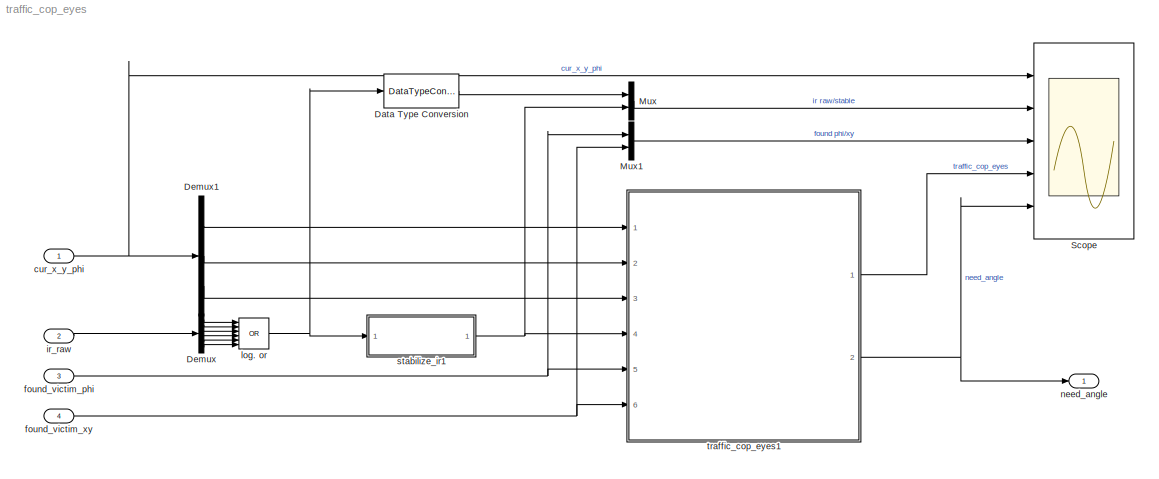
MODEL traffic_cop_eyes
KIND model
BLOCK [DataTypeConversion] Data Type Conversion
  OutDataTypeStr = double
  RndMeth = Floor
  SID = 21
  SaturateOnIntegerOverflow = off
BLOCK [Demux] Demux
  DisplayOption = bar
  Outputs = 6
  Ports = [1, 6]
  SID = 5
BLOCK [Demux] Demux1
  DisplayOption = bar
  Outputs = 3
  Ports = [1, 3]
  SID = 6
BLOCK [Mux] Mux
  DisplayOption = bar
  Inputs = 2
  Ports = [2, 1]
  SID = 7
BLOCK [Mux] Mux1
  DisplayOption = bar
  Inputs = 2
  Ports = [2, 1]
  SID = 8
BLOCK [Scope] Scope
  NumInputPorts = 5
  Ports = [5]
  SID = 9
  ScopeSpecificationString = Simulink.scopes.TimeScopeBlockCfg('CurrentConfiguration', extmgr.ConfigurationSet(extmgr.Configuration('Core','General UI',true),extmgr.Configuration('Core','Source UI',true),extmgr.Configuration('Sources','WiredSimulink',true,'DataLoggingLimitDataPoints',true,'DataLoggingSaveFormat','Array','DataLoggingDecimation','1','DataLoggingDecimateData',true),extmgr.Configuration('Visuals','Time Domain',tr...<+5061ch>
BLOCK [Inport] cur_x_y_phi
  IconDisplay = Port number
  SID = 1
BLOCK [Inport] found_victim_phi
  IconDisplay = Port number
  Port = 3
  SID = 3
BLOCK [Inport] found_victim_xy
  IconDisplay = Port number
  Port = 4
  SID = 4
BLOCK [Inport] ir_raw
  IconDisplay = Port number
  Port = 2
  SID = 2
BLOCK [Logic] log. or
  AllPortsSameDT = off
  Inputs = 6
  Operator = OR
  OutDataTypeStr = boolean
  Ports = [6, 1]
  SID = 10
BLOCK [Outport] need_angle
  IconDisplay = Port number
  SID = 13
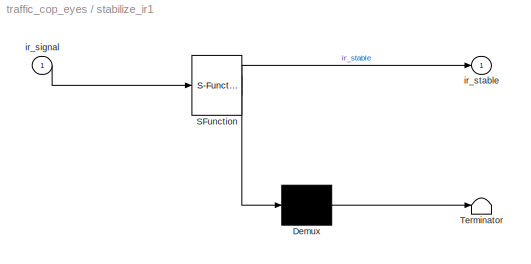
BLOCK [SubSystem] stabilize_ir1
  ErrorFcn = Stateflow.Translate.translate
  PermitHierarchicalResolution = ExplicitOnly
  Ports = [1, 1]
  RequestExecContextInheritance = off
  SFBlockType = Chart
  SID = 18
  TreatAsAtomicUnit = on
  Variant = off
BLOCK [Demux] stabilize_ir1/ Demux 
  Outputs = 1
  Ports = [1, 1]
  SID = 18::78
BLOCK [S-Function] stabilize_ir1/ SFunction 
  EnableBusSupport = on
  FunctionName = sf_sfun
  PortCounts = [1 2]
  Ports = [1, 2]
  SFunctionDeploymentMode = off
  SID = 18::77
  Tag = Stateflow S-Function traffic_cop_eyes 9
BLOCK [Terminator] stabilize_ir1/ Terminator 
  SID = 18::79
BLOCK [Inport] stabilize_ir1/ir_signal
  IconDisplay = Port number
  SID = 18::81
BLOCK [Outport] stabilize_ir1/ir_stable
  IconDisplay = Port number
  SID = 18::82
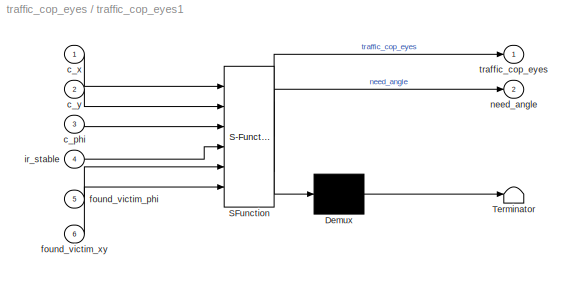
BLOCK [SubSystem] traffic_cop_eyes1
  ErrorFcn = Stateflow.Translate.translate
  PermitHierarchicalResolution = ExplicitOnly
  Ports = [6, 2]
  RequestExecContextInheritance = off
  SFBlockType = Chart
  SID = 20
  TreatAsAtomicUnit = on
  Variant = off
BLOCK [Demux] traffic_cop_eyes1/ Demux 
  Outputs = 1
  Ports = [1, 1]
  SID = 20::78
BLOCK [S-Function] traffic_cop_eyes1/ SFunction 
  EnableBusSupport = on
  FunctionName = sf_sfun
  PortCounts = [6 3]
  Ports = [6, 3]
  SFunctionDeploymentMode = off
  SID = 20::77
  Tag = Stateflow S-Function traffic_cop_eyes 8
BLOCK [Terminator] traffic_cop_eyes1/ Terminator 
  SID = 20::99
BLOCK [Inport] traffic_cop_eyes1/c_phi
  IconDisplay = Port number
  Port = 3
  SID = 20::118
BLOCK [Inport] traffic_cop_eyes1/c_x
  IconDisplay = Port number
  SID = 20::112
BLOCK [Inport] traffic_cop_eyes1/c_y
  IconDisplay = Port number
  Port = 2
  SID = 20::113
BLOCK [Inport] traffic_cop_eyes1/found_victim_phi
  IconDisplay = Port number
  Port = 5
  SID = 20::92
BLOCK [Inport] traffic_cop_eyes1/found_victim_xy
  IconDisplay = Port number
  Port = 6
  SID = 20::93
BLOCK [Inport] traffic_cop_eyes1/ir_stable
  IconDisplay = Port number
  Port = 4
  SID = 20::117
BLOCK [Outport] traffic_cop_eyes1/need_angle
  IconDisplay = Port number
  Port = 2
  SID = 20::114
BLOCK [Outport] traffic_cop_eyes1/traffic_cop_eyes
  IconDisplay = Port number
  SID = 20::116
LINE Data Type Conversion:1 -> Mux:1
LINE Demux1:1 -> traffic_cop_eyes1:1
LINE Demux1:2 -> traffic_cop_eyes1:2
LINE Demux1:3 -> traffic_cop_eyes1:3
LINE Demux:1 -> log. or:1
LINE Demux:2 -> log. or:2
LINE Demux:3 -> log. or:3
LINE Demux:4 -> log. or:4
LINE Demux:5 -> log. or:5
LINE Demux:6 -> log. or:6
LINE Mux1:1 -> Scope:3
LINE Mux:1 -> Scope:2
NET cur_x_y_phi:1 -> Demux1:1, Scope:1
NET found_victim_phi:1 -> Mux1:1, traffic_cop_eyes1:5
NET found_victim_xy:1 -> Mux1:2, traffic_cop_eyes1:6
LINE ir_raw:1 -> Demux:1
NET log. or:1 -> Data Type Conversion:1, stabilize_ir1:1
LINE stabilize_ir1/ Demux :1 -> stabilize_ir1/ Terminator :1
LINE stabilize_ir1/ SFunction :1 -> stabilize_ir1/ Demux :1
LINE stabilize_ir1/ SFunction :2 -> stabilize_ir1/ir_stable:1
LINE stabilize_ir1/ir_signal:1 -> stabilize_ir1/ SFunction :1
NET stabilize_ir1:1 -> Mux:2, traffic_cop_eyes1:4
LINE traffic_cop_eyes1/ Demux :1 -> traffic_cop_eyes1/ Terminator :1
LINE traffic_cop_eyes1/ SFunction :1 -> traffic_cop_eyes1/ Demux :1
LINE traffic_cop_eyes1/ SFunction :2 -> traffic_cop_eyes1/traffic_cop_eyes:1
LINE traffic_cop_eyes1/ SFunction :3 -> traffic_cop_eyes1/need_angle:1
LINE traffic_cop_eyes1/c_phi:1 -> traffic_cop_eyes1/ SFunction :3
LINE traffic_cop_eyes1/c_x:1 -> traffic_cop_eyes1/ SFunction :1
LINE traffic_cop_eyes1/c_y:1 -> traffic_cop_eyes1/ SFunction :2
LINE traffic_cop_eyes1/found_victim_phi:1 -> traffic_cop_eyes1/ SFunction :5
LINE traffic_cop_eyes1/found_victim_xy:1 -> traffic_cop_eyes1/ SFunction :6
LINE traffic_cop_eyes1/ir_stable:1 -> traffic_cop_eyes1/ SFunction :4
LINE traffic_cop_eyes1:1 -> Scope:4
NET traffic_cop_eyes1:2 -> Scope:5, need_angle:1
note: NET lines group one-source signal fan-out (src -> all destinations, sorted); 1:1 wires keep LINE
CHART traffic_cop_eyes1 states=7 transitions=7
  STATE_LABEL 'Detection'
  STATE_LABEL 'WaitDetect\\nen:\\nlast_x = c_x;\\nlast_y = c_y;\\nlast_phi = c_phi;\\nneed_angle = 1;\\nex:\\nneed_angle = 0;'
  STATE_LABEL 'NoIdea'
  STATE_LABEL 'dist = ray_dist(dx, dy, ray_phi)'
  STATE_LABEL 'WaitOff'
  STATE_LABEL 'SomeIdea\\n\\n'
  STATE_LABEL 'Done\\nen:\\nneed_angle = 0;'
CHART stabilize_ir1 states=3 transitions=5
  STATE_LABEL 'Nothing'
  STATE_LABEL 'Teddy\\nen:\\nir_stable = 1;\\nex:\\nir_stable = 0;'
  STATE_LABEL 'Something'
